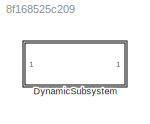
MODEL slx_8f168525c209
KIND model
CONFIG AbsTol = auto
CONFIG EnableMultiTasking = off
CONFIG FixedStep = auto
CONFIG MaxStep = auto
CONFIG MinStep = auto
CONFIG RelTol = 1e-3
CONFIG SampleTimeConstraint = Unconstrained
CONFIG SolverName = ode45
CONFIG StartTime = 0.0
CONFIG StopTime = 10
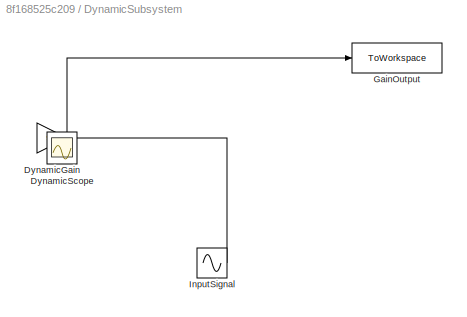
BLOCK [SubSystem] DynamicSubsystem
BLOCK [Gain] DynamicSubsystem/DynamicGain
  Gain = 9
BLOCK [Scope] DynamicSubsystem/DynamicScope
  Floating = off
  NumInputPorts = 1
BLOCK [ToWorkspace] DynamicSubsystem/GainOutput
  FixptAsFi = on
  MaxDataPoints = inf
  SampleTime = -1
  SaveFormat = Structure With Time
  VariableName = GainOutput
BLOCK [Sin] DynamicSubsystem/InputSignal
  SampleTime = 0
NET DynamicSubsystem/DynamicGain:1 -> DynamicSubsystem/DynamicScope:1, DynamicSubsystem/GainOutput:1
LINE DynamicSubsystem/InputSignal:1 -> DynamicSubsystem/DynamicGain:1
note: NET lines group one-source signal fan-out (src -> all destinations, sorted); 1:1 wires keep LINE
